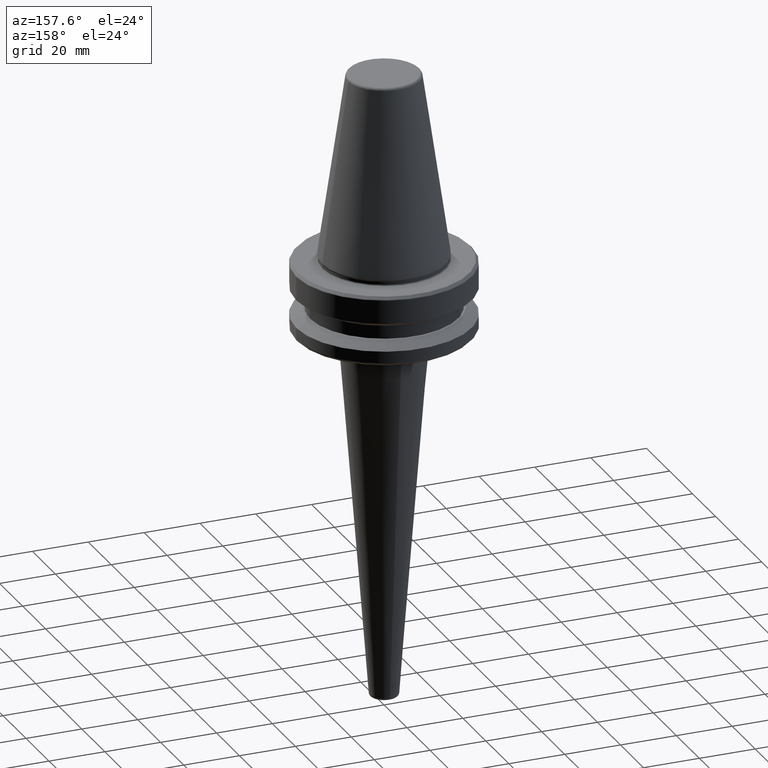
[diagram: clean part render]
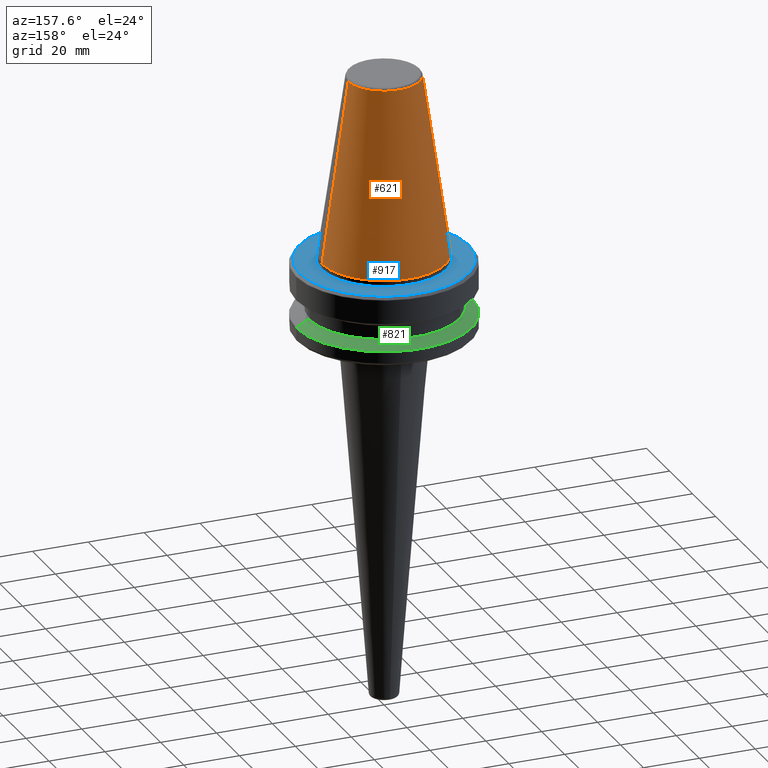
[diagram: same view with three faces highlighted in distinct colors, each labeled with its STEP entity id]
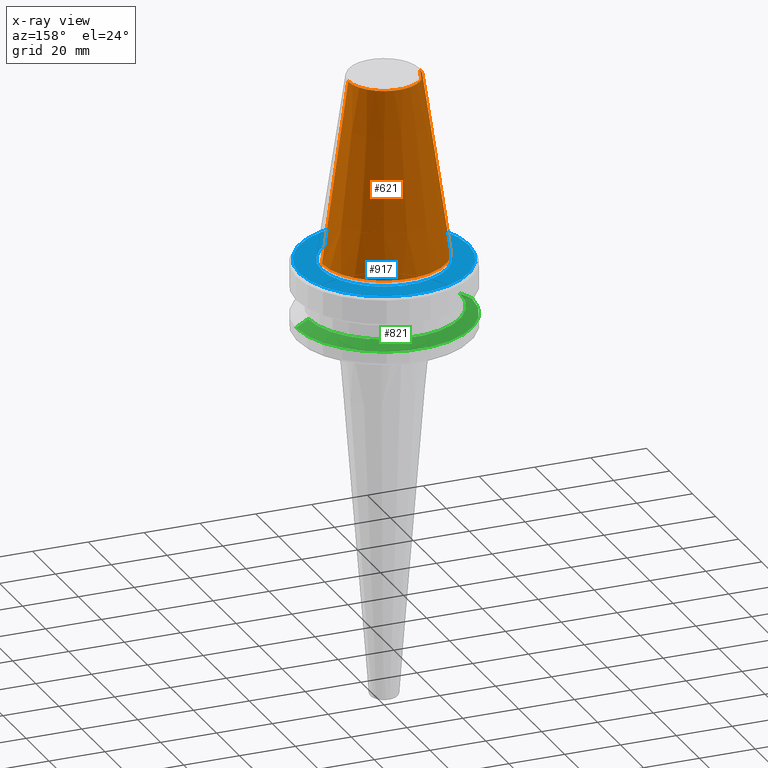
[diagram: x-ray of the same camera — body ghosted, the three highlighted faces saturated]
A machine part, auxiliary view with three faces highlighted in distinct colors.
The next image is the same camera in x-ray (body ghosted, the three faces saturated) — at least one of them is partly hidden behind the body in this view.
Their STEP definitions:

[orange] entity #621 — the highlighted conical surface has half-angle 8.297 deg.
#10 = CONICAL_SURFACE ( 'NONE', #855, 12.81219950706224800, 0.1448138465474191100 ) ;
#22 = CARTESIAN_POINT ( 'NONE',  ( 12.81219950706224800, 1.569041911636107800E-015, 64.54430822726730800 ) ) ;
#38 = DIRECTION ( 'NONE',  ( 0.0000000000000000000, 0.0000000000000000000, -1.000000000000000000 ) ) ;
#41 = CARTESIAN_POINT ( 'NONE',  ( 0.0000000000000000000, 0.0000000000000000000, 64.54430822726730800 ) ) ;
#97 = LINE ( 'NONE', #22, #575 ) ;
#134 = CARTESIAN_POINT ( 'NONE',  ( 0.0000000000000000000, 0.0000000000000000000, 64.54430822726730800 ) ) ;
#222 = DIRECTION ( 'NONE',  ( -0.0000000000000000000, -0.0000000000000000000, 1.000000000000000000 ) ) ;
#228 = DIRECTION ( 'NONE',  ( 1.000000000000000000, 0.0000000000000000000, 0.0000000000000000000 ) ) ;
#298 = FACE_OUTER_BOUND ( 'NONE', #863, .T. ) ;
#323 = ORIENTED_EDGE ( 'NONE', *, *, #1130, .F. ) ;
#340 = ORIENTED_EDGE ( 'NONE', *, *, #809, .T. ) ;
#354 = DIRECTION ( 'NONE',  ( -0.1443082272673071000, 0.0000000000000000000, -0.9895327864921743500 ) ) ;
#402 = CARTESIAN_POINT ( 'NONE',  ( 12.81219950706224800, 2.145409711370550300E-015, 64.54430822726730800 ) ) ;
#467 = ORIENTED_EDGE ( 'NONE', *, *, #492, .T. ) ;
#480 = ORIENTED_EDGE ( 'NONE', *, *, #582, .F. ) ;
#492 = EDGE_CURVE ( 'NONE', #633, #583, #97, .T. ) ;
#547 = CARTESIAN_POINT ( 'NONE',  ( -12.81219950706224800, 0.0000000000000000000, 64.54430822726730800 ) ) ;
#575 = VECTOR ( 'NONE', #1152, 1000.000000000000000 ) ;
#581 = AXIS2_PLACEMENT_3D ( 'NONE', #780, #222, #877 ) ;
#582 = EDGE_CURVE ( 'NONE', #633, #808, #746, .T. ) ;
#583 = VERTEX_POINT ( 'NONE', #1077 ) ;
#597 = AXIS2_PLACEMENT_3D ( 'NONE', #134, #788, #228 ) ;
#621 = ADVANCED_FACE ( 'NONE', ( #298 ), #10, .T. ) ;
#633 = VERTEX_POINT ( 'NONE', #402 ) ;
#708 = VECTOR ( 'NONE', #354, 1000.000000000000000 ) ;
#723 = CARTESIAN_POINT ( 'NONE',  ( -12.81219950706224800, 0.0000000000000000000, 64.54430822726730800 ) ) ;
#746 = CIRCLE ( 'NONE', #597, 12.81219950706224800 ) ;
#780 = CARTESIAN_POINT ( 'NONE',  ( 0.0000000000000000000, 0.0000000000000000000, 0.0000000000000000000 ) ) ;
#788 = DIRECTION ( 'NONE',  ( -0.0000000000000000000, -0.0000000000000000000, 1.000000000000000000 ) ) ;
#808 = VERTEX_POINT ( 'NONE', #547 ) ;
#809 = EDGE_CURVE ( 'NONE', #583, #962, #1090, .T. ) ;
#855 = AXIS2_PLACEMENT_3D ( 'NONE', #41, #38, #989 ) ;
#863 = EDGE_LOOP ( 'NONE', ( #480, #467, #340, #323 ) ) ;
#877 = DIRECTION ( 'NONE',  ( 1.000000000000000000, 0.0000000000000000000, 0.0000000000000000000 ) ) ;
#962 = VERTEX_POINT ( 'NONE', #1006 ) ;
#963 = LINE ( 'NONE', #723, #708 ) ;
#989 = DIRECTION ( 'NONE',  ( -1.000000000000000000, 0.0000000000000000000, 0.0000000000000000000 ) ) ;
#1006 = CARTESIAN_POINT ( 'NONE',  ( -22.22500000000000500, 2.721777511104993200E-015, 0.0000000000000000000 ) ) ;
#1077 = CARTESIAN_POINT ( 'NONE',  ( 22.22500000000000500, 0.0000000000000000000, 0.0000000000000000000 ) ) ;
#1090 = CIRCLE ( 'NONE', #581, 22.22500000000000500 ) ;
#1130 = EDGE_CURVE ( 'NONE', #808, #962, #963, .T. ) ;
#1152 = DIRECTION ( 'NONE',  ( 0.1443082272673071000, 1.767266086135364600E-017, -0.9895327864921743500 ) ) ;

[blue] entity #917 — the highlighted planar face has unit normal (0, -0, 1).
#18 = FACE_OUTER_BOUND ( 'NONE', #1039, .T. ) ;
#27 = CARTESIAN_POINT ( 'NONE',  ( 0.0000000000000000000, 0.0000000000000000000, -2.000000000000001800 ) ) ;
#32 = DIRECTION ( 'NONE',  ( 1.000000000000000000, 0.0000000000000000000, 0.0000000000000000000 ) ) ;
#42 = CARTESIAN_POINT ( 'NONE',  ( 0.0000000000000000000, 0.0000000000000000000, -2.000000000000002700 ) ) ;
#56 = CARTESIAN_POINT ( 'NONE',  ( 0.0000000000000000000, 0.0000000000000000000, -2.000000000000001800 ) ) ;
#83 = ORIENTED_EDGE ( 'NONE', *, *, #1066, .T. ) ;
#93 = ORIENTED_EDGE ( 'NONE', *, *, #548, .F. ) ;
#120 = DIRECTION ( 'NONE',  ( 1.000000000000000000, 0.0000000000000000000, 0.0000000000000000000 ) ) ;
#149 = DIRECTION ( 'NONE',  ( 1.000000000000000000, 0.0000000000000000000, 0.0000000000000000000 ) ) ;
#151 = EDGE_CURVE ( 'NONE', #974, #401, #1073, .T. ) ;
#154 = CARTESIAN_POINT ( 'NONE',  ( -30.33431457505075800, 3.732201245991191100E-015, -2.000000000000001800 ) ) ;
#178 = CARTESIAN_POINT ( 'NONE',  ( -22.50000000000000000, 2.755455298081544800E-015, -2.000000000000001300 ) ) ;
#217 = AXIS2_PLACEMENT_3D ( 'NONE', #27, #686, #120 ) ;
#235 = CARTESIAN_POINT ( 'NONE',  ( 0.0000000000000000000, 0.0000000000000000000, -2.000000000000001800 ) ) ;
#236 = AXIS2_PLACEMENT_3D ( 'NONE', #42, #999, #435 ) ;
#337 = DIRECTION ( 'NONE',  ( 1.000000000000000000, 0.0000000000000000000, 0.0000000000000000000 ) ) ;
#343 = CARTESIAN_POINT ( 'NONE',  ( 30.33431457505075800, 0.0000000000000000000, -2.000000000000001800 ) ) ;
#401 = VERTEX_POINT ( 'NONE', #178 ) ;
#435 = DIRECTION ( 'NONE',  ( 1.000000000000000000, 0.0000000000000000000, 0.0000000000000000000 ) ) ;
#517 = EDGE_CURVE ( 'NONE', #934, #973, #850, .T. ) ;
#530 = CIRCLE ( 'NONE', #543, 22.50000000000000000 ) ;
#543 = AXIS2_PLACEMENT_3D ( 'NONE', #1162, #599, #32 ) ;
#548 = EDGE_CURVE ( 'NONE', #401, #974, #530, .T. ) ;
#599 = DIRECTION ( 'NONE',  ( -0.0000000000000000000, -0.0000000000000000000, 1.000000000000000000 ) ) ;
#627 = CIRCLE ( 'NONE', #1000, 30.33431457505075800 ) ;
#668 = EDGE_LOOP ( 'NONE', ( #689, #93 ) ) ;
#686 = DIRECTION ( 'NONE',  ( -0.0000000000000000000, -0.0000000000000000000, 1.000000000000000000 ) ) ;
#689 = ORIENTED_EDGE ( 'NONE', *, *, #151, .F. ) ;
#713 = DIRECTION ( 'NONE',  ( -0.0000000000000000000, -0.0000000000000000000, 1.000000000000000000 ) ) ;
#744 = FACE_BOUND ( 'NONE', #668, .T. ) ;
#814 = CARTESIAN_POINT ( 'NONE',  ( 22.50000000000000000, 0.0000000000000000000, -2.000000000000001300 ) ) ;
#850 = CIRCLE ( 'NONE', #217, 30.33431457505075800 ) ;
#900 = DIRECTION ( 'NONE',  ( -0.0000000000000000000, -0.0000000000000000000, 1.000000000000000000 ) ) ;
#902 = PLANE ( 'NONE',  #236 ) ;
#917 = ADVANCED_FACE ( 'NONE', ( #18, #744 ), #902, .T. ) ;
#934 = VERTEX_POINT ( 'NONE', #343 ) ;
#953 = ORIENTED_EDGE ( 'NONE', *, *, #517, .T. ) ;
#973 = VERTEX_POINT ( 'NONE', #154 ) ;
#974 = VERTEX_POINT ( 'NONE', #814 ) ;
#999 = DIRECTION ( 'NONE',  ( 0.0000000000000000000, -0.0000000000000000000, 1.000000000000000000 ) ) ;
#1000 = AXIS2_PLACEMENT_3D ( 'NONE', #56, #713, #149 ) ;
#1039 = EDGE_LOOP ( 'NONE', ( #953, #83 ) ) ;
#1066 = EDGE_CURVE ( 'NONE', #973, #934, #627, .T. ) ;
#1073 = CIRCLE ( 'NONE', #1160, 22.50000000000000000 ) ;
#1160 = AXIS2_PLACEMENT_3D ( 'NONE', #235, #900, #337 ) ;
#1162 = CARTESIAN_POINT ( 'NONE',  ( 0.0000000000000000000, 0.0000000000000000000, -2.000000000000001800 ) ) ;

[green] entity #821 — the highlighted conical surface has half-angle 60 deg.
#8 = VERTEX_POINT ( 'NONE', #1128 ) ;
#33 = DIRECTION ( 'NONE',  ( 0.0000000000000000000, 0.0000000000000000000, -1.000000000000000000 ) ) ;
#87 = FACE_OUTER_BOUND ( 'NONE', #620, .T. ) ;
#94 = EDGE_CURVE ( 'NONE', #554, #8, #123, .T. ) ;
#123 = LINE ( 'NONE', #511, #355 ) ;
#131 = ORIENTED_EDGE ( 'NONE', *, *, #94, .F. ) ;
#170 = AXIS2_PLACEMENT_3D ( 'NONE', #938, #1094, #612 ) ;
#199 = VECTOR ( 'NONE', #680, 1000.000000000000000 ) ;
#265 = CARTESIAN_POINT ( 'NONE',  ( 27.16962701892216700, 3.592478546794605500E-015, -19.10000000000000500 ) ) ;
#330 = CARTESIAN_POINT ( 'NONE',  ( 0.0000000000000000000, 0.0000000000000000000, -21.60014200631675500 ) ) ;
#355 = VECTOR ( 'NONE', #979, 1000.000000000000000 ) ;
#379 = EDGE_CURVE ( 'NONE', #441, #554, #681, .T. ) ;
#428 = DIRECTION ( 'NONE',  ( 1.000000000000000000, 0.0000000000000000000, 0.0000000000000000000 ) ) ;
#441 = VERTEX_POINT ( 'NONE', #265 ) ;
#459 = LINE ( 'NONE', #497, #199 ) ;
#470 = ORIENTED_EDGE ( 'NONE', *, *, #1004, .T. ) ;
#497 = CARTESIAN_POINT ( 'NONE',  ( 27.16962701892216700, 3.327319676275047600E-015, -19.10000000000000500 ) ) ;
#511 = CARTESIAN_POINT ( 'NONE',  ( -27.16962701892216700, 0.0000000000000000000, -19.10000000000000500 ) ) ;
#554 = VERTEX_POINT ( 'NONE', #876 ) ;
#565 = AXIS2_PLACEMENT_3D ( 'NONE', #330, #991, #428 ) ;
#612 = DIRECTION ( 'NONE',  ( 1.000000000000000000, 0.0000000000000000000, 0.0000000000000000000 ) ) ;
#620 = EDGE_LOOP ( 'NONE', ( #1096, #1076, #470, #131 ) ) ;
#676 = EDGE_CURVE ( 'NONE', #441, #1067, #459, .T. ) ;
#680 = DIRECTION ( 'NONE',  ( 0.8660254037844403700, 1.060575238724909000E-016, -0.4999999999999970000 ) ) ;
#681 = CIRCLE ( 'NONE', #170, 27.16962701892216700 ) ;
#767 = CONICAL_SURFACE ( 'NONE', #832, 27.16962701892216700, 1.047197551196601200 ) ;
#821 = ADVANCED_FACE ( 'NONE', ( #87 ), #767, .T. ) ;
#832 = AXIS2_PLACEMENT_3D ( 'NONE', #1164, #33, #978 ) ;
#876 = CARTESIAN_POINT ( 'NONE',  ( -27.16962701892216700, 0.0000000000000000000, -19.10000000000000500 ) ) ;
#903 = CARTESIAN_POINT ( 'NONE',  ( 31.50000000000000000, 0.0000000000000000000, -21.60014200631675500 ) ) ;
#938 = CARTESIAN_POINT ( 'NONE',  ( 0.0000000000000000000, 0.0000000000000000000, -19.10000000000000500 ) ) ;
#947 = CIRCLE ( 'NONE', #565, 31.50000000000000000 ) ;
#978 = DIRECTION ( 'NONE',  ( -1.000000000000000000, 0.0000000000000000000, 0.0000000000000000000 ) ) ;
#979 = DIRECTION ( 'NONE',  ( -0.8660254037844403700, 0.0000000000000000000, -0.4999999999999970000 ) ) ;
#991 = DIRECTION ( 'NONE',  ( -0.0000000000000000000, -0.0000000000000000000, 1.000000000000000000 ) ) ;
#1004 = EDGE_CURVE ( 'NONE', #1067, #8, #947, .T. ) ;
#1067 = VERTEX_POINT ( 'NONE', #903 ) ;
#1076 = ORIENTED_EDGE ( 'NONE', *, *, #676, .T. ) ;
#1094 = DIRECTION ( 'NONE',  ( -0.0000000000000000000, -0.0000000000000000000, 1.000000000000000000 ) ) ;
#1096 = ORIENTED_EDGE ( 'NONE', *, *, #379, .F. ) ;
#1128 = CARTESIAN_POINT ( 'NONE',  ( -31.50000000000000000, 3.857637417314162700E-015, -21.60014200631675500 ) ) ;
#1164 = CARTESIAN_POINT ( 'NONE',  ( 0.0000000000000000000, 0.0000000000000000000, -19.10000000000000500 ) ) ;